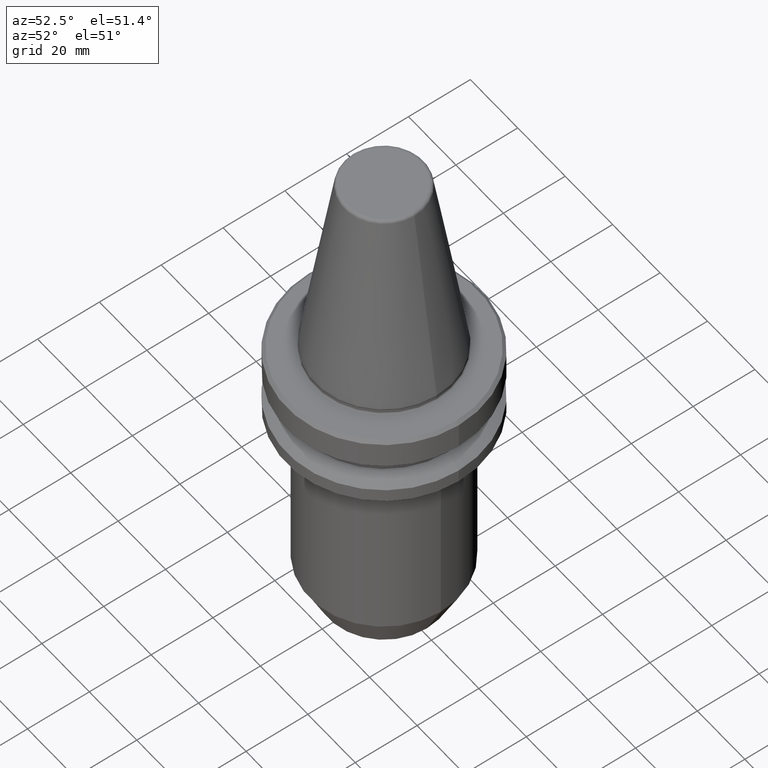
[diagram: clean part render]
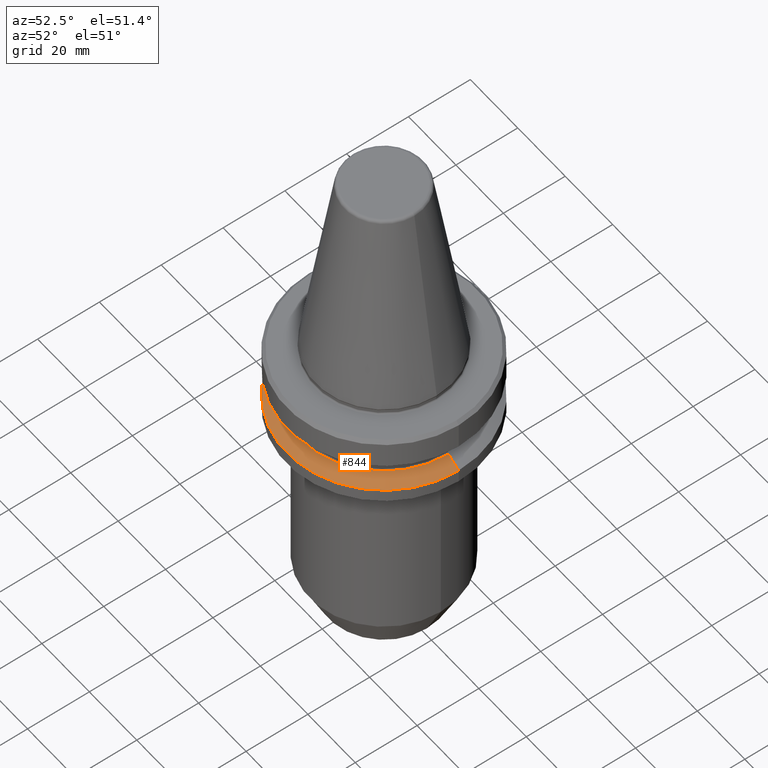
[diagram: same view with one face highlighted and labeled with its STEP entity id]
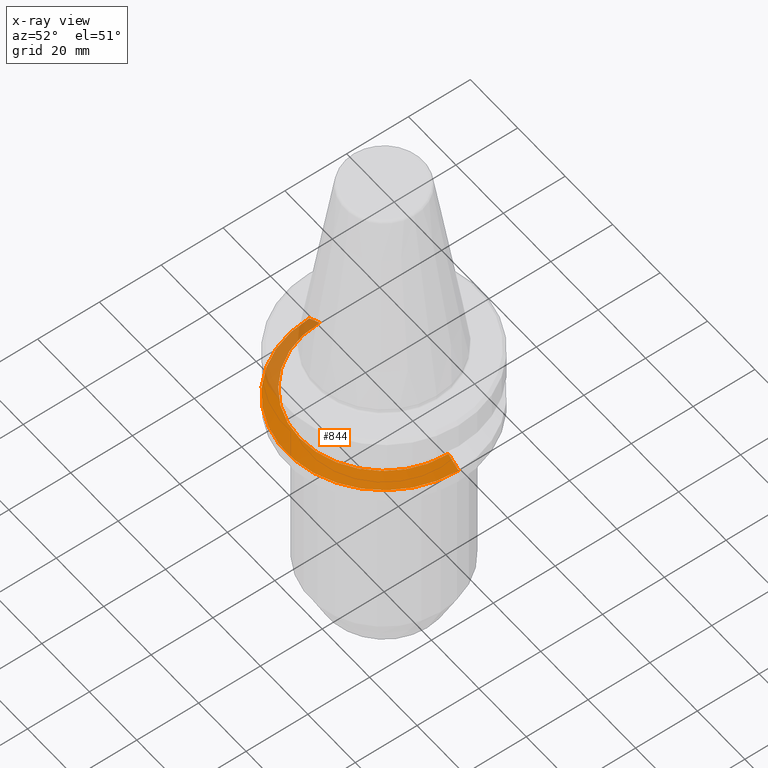
[diagram: x-ray of the same camera — body ghosted, the highlighted face saturated]
A machine part, auxiliary view. The second image highlights one B-rep face of the part: STEP entity #844.
The next image is the same camera in x-ray: the body ghosted, the highlighted face saturated — about 19% of this face is hidden behind the body in this view.
In plain terms, the highlighted conical surface has half-angle 60 deg.
Its self-contained STEP definition (entity closure, byte-faithful):
#29 = EDGE_CURVE ( 'NONE', #900, #890, #709, .T. ) ;
#50 = CARTESIAN_POINT ( 'NONE',  ( 27.16962701892167300, 3.592478546794586600E-015, -18.41128678844344800 ) ) ;
#84 = AXIS2_PLACEMENT_3D ( 'NONE', #990, #992, #979 ) ;
#92 = DIRECTION ( 'NONE',  ( 0.0000000000000000000, 0.0000000000000000000, -1.000000000000000000 ) ) ;
#111 = AXIS2_PLACEMENT_3D ( 'NONE', #996, #92, #465 ) ;
#175 = CARTESIAN_POINT ( 'NONE',  ( 0.0000000000000000000, 0.0000000000000000000, -18.41128678844344800 ) ) ;
#251 = AXIS2_PLACEMENT_3D ( 'NONE', #175, #355, #825 ) ;
#318 = DIRECTION ( 'NONE',  ( -0.8660254037844400400, 0.0000000000000000000, -0.4999999999999976100 ) ) ;
#355 = DIRECTION ( 'NONE',  ( -0.0000000000000000000, -0.0000000000000000000, 1.000000000000000000 ) ) ;
#433 = EDGE_CURVE ( 'NONE', #1002, #900, #493, .T. ) ;
#465 = DIRECTION ( 'NONE',  ( -1.000000000000000000, 0.0000000000000000000, 0.0000000000000000000 ) ) ;
#470 = ORIENTED_EDGE ( 'NONE', *, *, #29, .T. ) ;
#481 = CARTESIAN_POINT ( 'NONE',  ( -27.16962701892167300, 0.0000000000000000000, -18.41128678844344800 ) ) ;
#493 = LINE ( 'NONE', #947, #918 ) ;
#523 = VERTEX_POINT ( 'NONE', #50 ) ;
#535 = CIRCLE ( 'NONE', #251, 27.16962701892167300 ) ;
#577 = EDGE_CURVE ( 'NONE', #1002, #523, #535, .T. ) ;
#614 = FACE_OUTER_BOUND ( 'NONE', #976, .T. ) ;
#638 = DIRECTION ( 'NONE',  ( 0.8660254037844400400, 1.060575238724908600E-016, -0.4999999999999976100 ) ) ;
#689 = VECTOR ( 'NONE', #638, 1000.000000000000000 ) ;
#709 = CIRCLE ( 'NONE', #84, 31.50000000000019500 ) ;
#773 = CARTESIAN_POINT ( 'NONE',  ( 31.50000000000019500, 3.857637417314186400E-015, -20.91142879476059900 ) ) ;
#798 = CARTESIAN_POINT ( 'NONE',  ( 31.50000000000019500, 0.0000000000000000000, -20.91142879476059900 ) ) ;
#825 = DIRECTION ( 'NONE',  ( 1.000000000000000000, 0.0000000000000000000, 0.0000000000000000000 ) ) ;
#833 = ORIENTED_EDGE ( 'NONE', *, *, #577, .F. ) ;
#844 = ADVANCED_FACE ( 'NONE', ( #614 ), #966, .T. ) ;
#890 = VERTEX_POINT ( 'NONE', #798 ) ;
#896 = CARTESIAN_POINT ( 'NONE',  ( -31.50000000000019500, 3.857637417314186400E-015, -20.91142879476059900 ) ) ;
#900 = VERTEX_POINT ( 'NONE', #896 ) ;
#911 = LINE ( 'NONE', #773, #689 ) ;
#917 = EDGE_CURVE ( 'NONE', #523, #890, #911, .T. ) ;
#918 = VECTOR ( 'NONE', #318, 1000.000000000000000 ) ;
#947 = CARTESIAN_POINT ( 'NONE',  ( -31.50000000000019500, 0.0000000000000000000, -20.91142879476059900 ) ) ;
#966 = CONICAL_SURFACE ( 'NONE', #111, 31.50000000000019500, 1.047197551196600500 ) ;
#976 = EDGE_LOOP ( 'NONE', ( #1006, #833, #1052, #470 ) ) ;
#979 = DIRECTION ( 'NONE',  ( 1.000000000000000000, 0.0000000000000000000, 0.0000000000000000000 ) ) ;
#990 = CARTESIAN_POINT ( 'NONE',  ( 0.0000000000000000000, 0.0000000000000000000, -20.91142879476059900 ) ) ;
#992 = DIRECTION ( 'NONE',  ( -0.0000000000000000000, -0.0000000000000000000, 1.000000000000000000 ) ) ;
#996 = CARTESIAN_POINT ( 'NONE',  ( 0.0000000000000000000, 0.0000000000000000000, -20.91142879476059900 ) ) ;
#1002 = VERTEX_POINT ( 'NONE', #481 ) ;
#1006 = ORIENTED_EDGE ( 'NONE', *, *, #917, .F. ) ;
#1052 = ORIENTED_EDGE ( 'NONE', *, *, #433, .T. ) ;